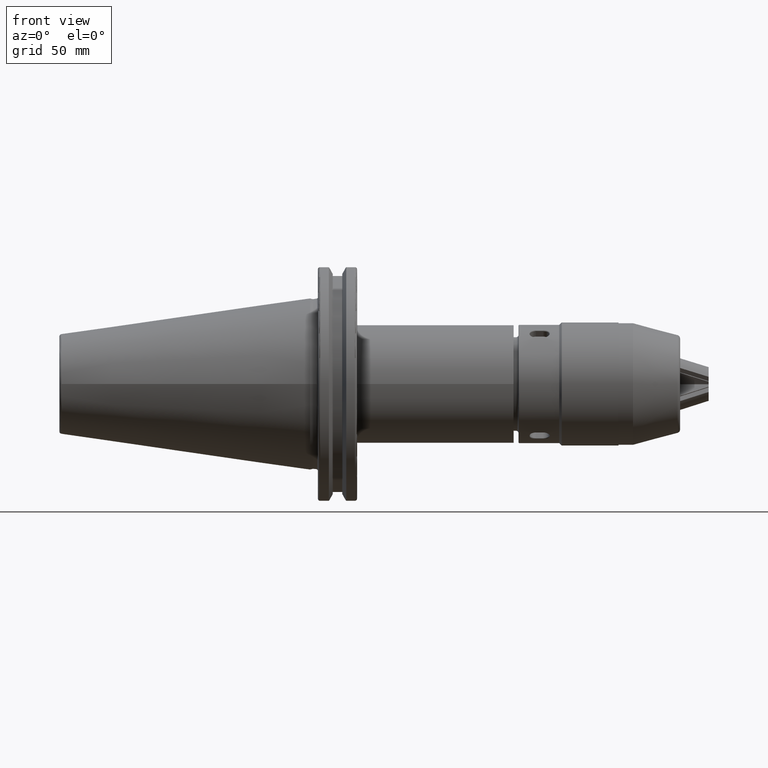
[diagram: clean part render]
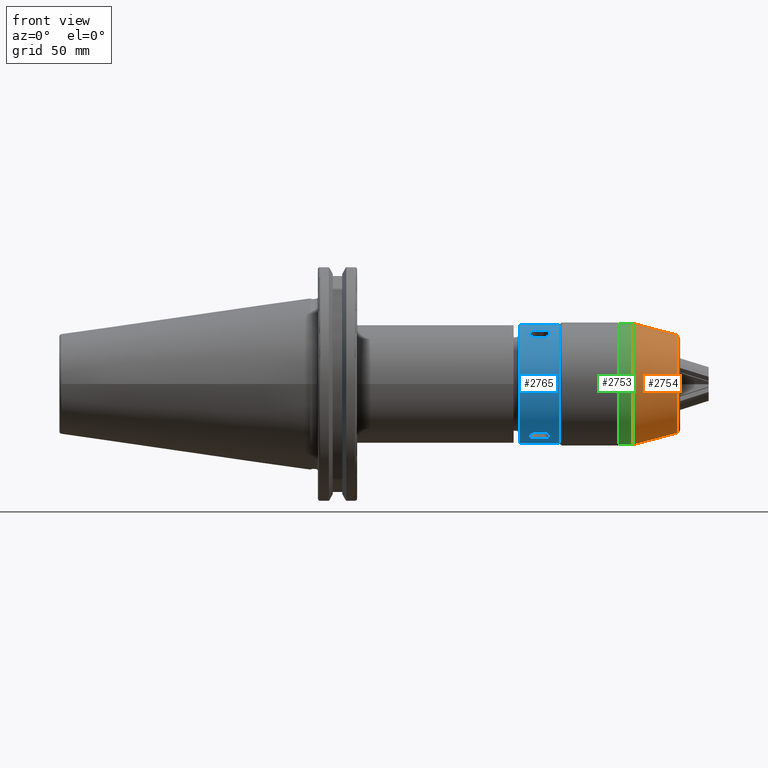
[diagram: same view with three faces highlighted in distinct colors, each labeled with its STEP entity id]
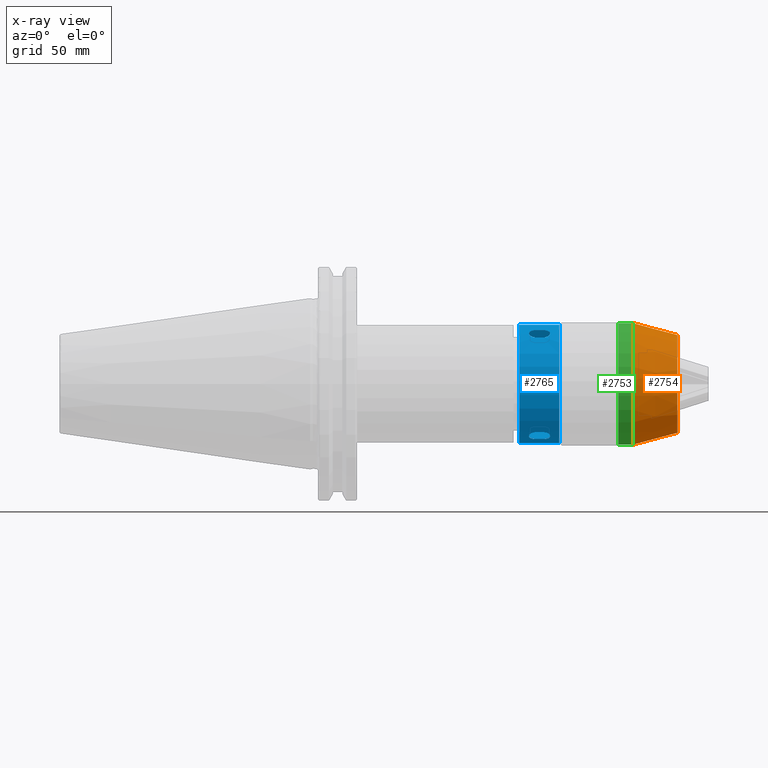
[diagram: x-ray of the same camera — body ghosted, the three highlighted faces saturated]
A machine part, front view with three faces highlighted in distinct colors.
The next image is the same camera in x-ray (body ghosted, the three faces saturated) — at least one of them is partly hidden behind the body in this view.
Their STEP definitions:

[orange] entity #2754 — the highlighted conical surface has half-angle 15 deg.
#426=CONICAL_SURFACE('',#3204,24.7,0.261799387799143);
#602=FACE_OUTER_BOUND('',#764,.T.);
#764=EDGE_LOOP('',(#2286,#2287,#2288,#2289));
#925=LINE('',#4890,#1122);
#1122=VECTOR('',#3792,24.7);
#1314=CIRCLE('',#3203,24.7);
#1315=CIRCLE('',#3205,19.8800686820308);
#1468=VERTEX_POINT('',#4885);
#1469=VERTEX_POINT('',#4889);
#1758=EDGE_CURVE('',#1468,#1468,#1314,.T.);
#1759=EDGE_CURVE('',#1468,#1469,#925,.T.);
#1760=EDGE_CURVE('',#1469,#1469,#1315,.T.);
#2286=ORIENTED_EDGE('',*,*,#1758,.F.);
#2287=ORIENTED_EDGE('',*,*,#1759,.T.);
#2288=ORIENTED_EDGE('',*,*,#1760,.T.);
#2289=ORIENTED_EDGE('',*,*,#1759,.F.);
#2754=ADVANCED_FACE('',(#602),#426,.T.);
#3203=AXIS2_PLACEMENT_3D('',#4887,#3788,#3789);
#3204=AXIS2_PLACEMENT_3D('',#4888,#3790,#3791);
#3205=AXIS2_PLACEMENT_3D('',#4891,#3793,#3794);
#3788=DIRECTION('center_axis',(9.33664374448044E-21,-1.,-2.19361169022002E-20));
#3789=DIRECTION('ref_axis',(4.32986979603811E-15,2.19361169022003E-20,-1.));
#3790=DIRECTION('center_axis',(9.33664374448044E-21,-1.,-2.19361169022002E-20));
#3791=DIRECTION('ref_axis',(4.32986979603811E-15,2.19361169022003E-20,-1.));
#3792=DIRECTION('',(1.1523399390378E-15,0.96592582628907,-0.258819045102515));
#3793=DIRECTION('center_axis',(9.33664374448044E-21,-1.,-2.19361169022002E-20));
#3794=DIRECTION('ref_axis',(4.32986979603811E-15,2.19361169022003E-20,-1.));
#4885=CARTESIAN_POINT('',(-1.09972940721683E-13,29.9,24.7));
#4887=CARTESIAN_POINT('Origin',(-2.79165648036739E-19,29.9,6.55889895421925E-19));
#4888=CARTESIAN_POINT('Origin',(-2.79165648036739E-19,29.9,6.55889895421925E-19));
#4889=CARTESIAN_POINT('',(-8.85131622926461E-14,47.8882285676538,19.8800686820308));
#4890=CARTESIAN_POINT('',(-1.09972940721683E-13,29.9,24.7));
#4891=CARTESIAN_POINT('Origin',(-4.47115329783956E-19,47.8882285676538,
1.05048178014135E-18));

[blue] entity #2765 — the highlighted cylindrical surface (bore or boss wall) has radius 24 mm, axis along (1, -0, -0).
#387=B_SPLINE_CURVE_WITH_KNOTS('',3,(#4963,#4964,#4965,#4966,#4967,#4968,
#4969,#4970,#4971,#4972,#4973,#4974,#4975,#4976,#4977,#4978,#4979,#4980),
 .UNSPECIFIED.,.F.,.F.,(4,2,2,2,2,2,2,2,4),(0.00440892581885731,0.00495953149996009,
0.00551013718106286,0.00606074286216564,0.00661134854326842,0.0071619542243712,
0.00771255990547397,0.00826316558657675,0.00881377126767952),
 .UNSPECIFIED.);
#388=B_SPLINE_CURVE_WITH_KNOTS('',3,(#4982,#4983,#4984,#4985,#4986,#4987,
#4988,#4989,#4990,#4991,#4992,#4993,#4994,#4995,#4996,#4997,#4998,#4999,
#5000,#5001,#5002,#5003,#5004,#5005,#5006,#5007,#5008,#5009,#5010,#5011,
#5012,#5013,#5014,#5015,#5016,#5017,#5018,#5019,#5020,#5021,#5022,#5023,
#5024,#5025,#5026,#5027,#5028,#5029,#5030,#5031,#5032,#5033,#5034,#5035,
#5036,#5037,#5038,#5039,#5040,#5041,#5042),.UNSPECIFIED.,.F.,.F.,(4,3,3,
3,3,3,3,3,3,3,3,3,3,3,3,3,3,3,3,3,4),(0.,0.000547517435391667,0.000551115727357164,
0.000946703184153695,0.00109552508824886,0.00110223145471433,0.00164452387624054,
0.00165334718207149,0.00207315003302939,0.00219472326330774,0.00220446290942865,
0.00258200978068174,0.00274626147636323,0.00275557863678582,0.0031373182863236,
0.00329900945385223,0.00330669436414298,0.00385271726613962,0.00385781009150015,
0.00440688062733961,0.00440892581885732),.UNSPECIFIED.);
#389=B_SPLINE_CURVE_WITH_KNOTS('',3,(#5043,#5044,#5045,#5046,#5047,#5048,
#5049,#5050,#5051,#5052,#5053,#5054,#5055,#5056,#5057,#5058,#5059,#5060),
 .UNSPECIFIED.,.F.,.F.,(4,2,2,2,2,2,2,2,4),(0.00440892581885732,0.00495953149996009,
0.00551013718106287,0.00606074286216565,0.00661134854326842,0.0071619542243712,
0.00771255990547398,0.00826316558657676,0.00881377126767953),
 .UNSPECIFIED.);
#390=B_SPLINE_CURVE_WITH_KNOTS('',3,(#5061,#5062,#5063,#5064,#5065,#5066,
#5067,#5068,#5069,#5070,#5071,#5072,#5073,#5074,#5075,#5076,#5077,#5078,
#5079,#5080,#5081,#5082,#5083,#5084,#5085,#5086,#5087,#5088,#5089,#5090,
#5091,#5092,#5093,#5094,#5095,#5096,#5097,#5098,#5099,#5100,#5101,#5102,
#5103,#5104,#5105,#5106,#5107,#5108,#5109,#5110,#5111,#5112,#5113,#5114,
#5115,#5116,#5117,#5118,#5119,#5120,#5121),.UNSPECIFIED.,.F.,.F.,(4,3,3,
3,3,3,3,3,3,3,3,3,3,3,3,3,3,3,3,3,4),(0.,0.000547517435391673,0.000551115727357164,
0.000946703184115908,0.00109552508824886,0.00110223145471433,0.00164452387624054,
0.00165334718207149,0.00207315003280708,0.00219472326330774,0.00220446290942866,
0.00258200978115564,0.00274626147636323,0.00275557863678582,0.00313731828656481,
0.00329900945385223,0.00330669436414298,0.00385271726613962,0.00385781009150015,
0.00440688062733961,0.00440892581885731),.UNSPECIFIED.);
#391=B_SPLINE_CURVE_WITH_KNOTS('',3,(#5124,#5125,#5126,#5127,#5128,#5129,
#5130,#5131,#5132,#5133,#5134,#5135,#5136,#5137,#5138,#5139,#5140,#5141,
#5142,#5143,#5144,#5145,#5146,#5147,#5148,#5149,#5150,#5151,#5152,#5153,
#5154,#5155,#5156,#5157),.UNSPECIFIED.,.F.,.F.,(4,2,2,2,2,2,2,2,2,2,2,2,
2,2,2,2,4),(0.,0.000550860704229969,0.00110172140845994,0.00165258211268991,
0.00220344281691987,0.00275430352114984,0.00330516422537981,0.00385602492960978,
0.00440688563383975,0.00495774633806972,0.00550860704229969,0.00605946774652966,
0.00661032845075963,0.0071611891549896,0.00771204985921958,0.00826291056344955,
0.00881377126767953),.UNSPECIFIED.);
#392=B_SPLINE_CURVE_WITH_KNOTS('',3,(#5161,#5162,#5163,#5164,#5165,#5166,
#5167,#5168,#5169,#5170,#5171,#5172,#5173,#5174,#5175,#5176,#5177,#5178,
#5179,#5180,#5181,#5182,#5183,#5184,#5185,#5186,#5187,#5188,#5189,#5190,
#5191,#5192,#5193,#5194),.UNSPECIFIED.,.F.,.F.,(4,2,2,2,2,2,2,2,2,2,2,2,
2,2,2,2,4),(0.,0.00055086070422997,0.00110172140845994,0.00165258211268991,
0.00220344281691988,0.00275430352114985,0.00330516422537982,0.00385602492960979,
0.00440688563383976,0.00495774633806973,0.0055086070422997,0.00605946774652967,
0.00661032845075964,0.00716118915498961,0.00771204985921958,0.00826291056344956,
0.00881377126767953),.UNSPECIFIED.);
#393=B_SPLINE_CURVE_WITH_KNOTS('',3,(#5200,#5201,#5202,#5203,#5204,#5205,
#5206,#5207,#5208,#5209,#5210,#5211,#5212,#5213,#5214,#5215,#5216,#5217,
#5218,#5219,#5220,#5221,#5222,#5223,#5224,#5225,#5226,#5227,#5228,#5229,
#5230,#5231,#5232,#5233),.UNSPECIFIED.,.F.,.F.,(4,2,2,2,2,2,2,2,2,2,2,2,
2,2,2,2,4),(0.,0.00055086070422997,0.00110172140845994,0.00165258211268991,
0.00220344281691988,0.00275430352114985,0.00330516422537982,0.00385602492960979,
0.00440688563383976,0.00495774633806973,0.0055086070422997,0.00605946774652968,
0.00661032845075965,0.00716118915498962,0.00771204985921959,0.00826291056344956,
0.00881377126767953),.UNSPECIFIED.);
#394=B_SPLINE_CURVE_WITH_KNOTS('',3,(#5236,#5237,#5238,#5239,#5240,#5241,
#5242,#5243,#5244,#5245,#5246,#5247,#5248,#5249,#5250,#5251,#5252,#5253,
#5254,#5255,#5256,#5257,#5258,#5259,#5260,#5261,#5262,#5263,#5264,#5265,
#5266,#5267,#5268,#5269),.UNSPECIFIED.,.F.,.F.,(4,2,2,2,2,2,2,2,2,2,2,2,
2,2,2,2,4),(0.,0.00055086070422997,0.00110172140845994,0.00165258211268991,
0.00220344281691988,0.00275430352114985,0.00330516422537982,0.00385602492960979,
0.00440688563383976,0.00495774633806973,0.0055086070422997,0.00605946774652967,
0.00661032845075964,0.00716118915498961,0.00771204985921958,0.00826291056344955,
0.00881377126767952),.UNSPECIFIED.);
#440=FACE_BOUND('',#777,.T.);
#441=FACE_BOUND('',#778,.T.);
#442=FACE_BOUND('',#779,.T.);
#613=FACE_OUTER_BOUND('',#776,.T.);
#776=EDGE_LOOP('',(#2326,#2327,#2328,#2329));
#777=EDGE_LOOP('',(#2330,#2331,#2332,#2333,#2334,#2335));
#778=EDGE_LOOP('',(#2336,#2337,#2338,#2339));
#779=EDGE_LOOP('',(#2340,#2341,#2342,#2343));
#926=LINE('',#4919,#1123);
#929=LINE('',#4937,#1126);
#932=LINE('',#4961,#1129);
#933=LINE('',#5159,#1130);
#934=LINE('',#5195,#1131);
#935=LINE('',#5198,#1132);
#936=LINE('',#5235,#1133);
#1123=VECTOR('',#3831,1000.);
#1126=VECTOR('',#3848,1000.);
#1129=VECTOR('',#3879,24.);
#1130=VECTOR('',#3880,1000.);
#1131=VECTOR('',#3881,1000.);
#1132=VECTOR('',#3882,1000.);
#1133=VECTOR('',#3883,1000.);
#1331=CIRCLE('',#3240,24.);
#1334=CIRCLE('',#3244,24.);
#1473=VERTEX_POINT('',#4916);
#1474=VERTEX_POINT('',#4918);
#1478=VERTEX_POINT('',#4927);
#1482=VERTEX_POINT('',#4935);
#1487=VERTEX_POINT('',#4953);
#1489=VERTEX_POINT('',#4959);
#1490=VERTEX_POINT('',#4962);
#1491=VERTEX_POINT('',#4981);
#1492=VERTEX_POINT('',#5122);
#1493=VERTEX_POINT('',#5123);
#1494=VERTEX_POINT('',#5158);
#1495=VERTEX_POINT('',#5160);
#1496=VERTEX_POINT('',#5196);
#1497=VERTEX_POINT('',#5197);
#1498=VERTEX_POINT('',#5199);
#1499=VERTEX_POINT('',#5234);
#1765=EDGE_CURVE('',#1474,#1473,#926,.T.);
#1774=EDGE_CURVE('',#1478,#1482,#929,.T.);
#1782=EDGE_CURVE('',#1487,#1487,#1331,.T.);
#1785=EDGE_CURVE('',#1489,#1489,#1334,.T.);
#1786=EDGE_CURVE('',#1489,#1487,#932,.T.);
#1787=EDGE_CURVE('',#1490,#1478,#387,.T.);
#1788=EDGE_CURVE('',#1482,#1491,#388,.T.);
#1789=EDGE_CURVE('',#1491,#1474,#389,.T.);
#1790=EDGE_CURVE('',#1473,#1490,#390,.T.);
#1791=EDGE_CURVE('',#1492,#1493,#391,.T.);
#1792=EDGE_CURVE('',#1493,#1494,#933,.T.);
#1793=EDGE_CURVE('',#1494,#1495,#392,.T.);
#1794=EDGE_CURVE('',#1495,#1492,#934,.T.);
#1795=EDGE_CURVE('',#1496,#1497,#935,.T.);
#1796=EDGE_CURVE('',#1497,#1498,#393,.T.);
#1797=EDGE_CURVE('',#1498,#1499,#936,.T.);
#1798=EDGE_CURVE('',#1499,#1496,#394,.T.);
#2326=ORIENTED_EDGE('',*,*,#1785,.F.);
#2327=ORIENTED_EDGE('',*,*,#1786,.T.);
#2328=ORIENTED_EDGE('',*,*,#1782,.T.);
#2329=ORIENTED_EDGE('',*,*,#1786,.F.);
#2330=ORIENTED_EDGE('',*,*,#1787,.T.);
#2331=ORIENTED_EDGE('',*,*,#1774,.T.);
#2332=ORIENTED_EDGE('',*,*,#1788,.T.);
#2333=ORIENTED_EDGE('',*,*,#1789,.T.);
#2334=ORIENTED_EDGE('',*,*,#1765,.T.);
#2335=ORIENTED_EDGE('',*,*,#1790,.T.);
#2336=ORIENTED_EDGE('',*,*,#1791,.T.);
#2337=ORIENTED_EDGE('',*,*,#1792,.T.);
#2338=ORIENTED_EDGE('',*,*,#1793,.T.);
#2339=ORIENTED_EDGE('',*,*,#1794,.T.);
#2340=ORIENTED_EDGE('',*,*,#1795,.T.);
#2341=ORIENTED_EDGE('',*,*,#1796,.T.);
#2342=ORIENTED_EDGE('',*,*,#1797,.T.);
#2343=ORIENTED_EDGE('',*,*,#1798,.T.);
#2665=CYLINDRICAL_SURFACE('',#3243,24.);
#2765=ADVANCED_FACE('',(#613,#440,#441,#442),#2665,.T.);
#3240=AXIS2_PLACEMENT_3D('',#4954,#3869,#3870);
#3243=AXIS2_PLACEMENT_3D('',#4958,#3875,#3876);
#3244=AXIS2_PLACEMENT_3D('',#4960,#3877,#3878);
#3831=DIRECTION('',(0.,-1.,0.));
#3848=DIRECTION('',(0.,1.,0.));
#3869=DIRECTION('center_axis',(0.,1.,0.));
#3870=DIRECTION('ref_axis',(0.,0.,1.));
#3875=DIRECTION('center_axis',(0.,1.,0.));
#3876=DIRECTION('ref_axis',(0.,0.,1.));
#3877=DIRECTION('center_axis',(0.,1.,0.));
#3878=DIRECTION('ref_axis',(0.,0.,1.));
#3879=DIRECTION('',(0.,-1.,0.));
#3880=DIRECTION('',(0.,-1.,0.));
#3881=DIRECTION('',(0.,1.,0.));
#3882=DIRECTION('',(0.,1.,0.));
#3883=DIRECTION('',(0.,-1.,0.));
#4916=CARTESIAN_POINT('',(2.83544303797468,-21.,23.8319168926547));
#4918=CARTESIAN_POINT('',(2.83544303797468,-18.,23.8319168926547));
#4919=CARTESIAN_POINT('',(2.83544303797467,0.,23.8319168926547));
#4927=CARTESIAN_POINT('',(-2.83544303797468,-21.,23.8319168926547));
#4935=CARTESIAN_POINT('',(-2.83544303797468,-18.,23.8319168926547));
#4937=CARTESIAN_POINT('',(-2.83544303797468,0.,23.8319168926547));
#4953=CARTESIAN_POINT('',(-2.93915231795365E-15,-27.7,-24.));
#4954=CARTESIAN_POINT('Origin',(0.,-27.7,0.));
#4958=CARTESIAN_POINT('Origin',(0.,0.,0.));
#4959=CARTESIAN_POINT('',(-2.93915231795365E-15,-11.5,-24.));
#4960=CARTESIAN_POINT('Origin',(0.,-11.5,0.));
#4961=CARTESIAN_POINT('',(-2.93915231795365E-15,0.,-24.));
#4962=CARTESIAN_POINT('',(7.05606588451342E-13,-23.799999991578,23.999999998587));
#4963=CARTESIAN_POINT('Ctrl Pts',(7.01516389887666E-13,-23.8,24.));
#4964=CARTESIAN_POINT('Ctrl Pts',(-0.183866423147814,-23.8,24.));
#4965=CARTESIAN_POINT('Ctrl Pts',(-0.370567700895003,-23.7819444709288,
23.9978203234072));
#4966=CARTESIAN_POINT('Ctrl Pts',(-0.732138923881349,-23.7111645898068,
23.989511735165));
#4967=CARTESIAN_POINT('Ctrl Pts',(-0.908042239445636,-23.6588119425311,
23.9834266527617));
#4968=CARTESIAN_POINT('Ctrl Pts',(-1.25001008675534,-23.5198473644258,23.9680364131071));
#4969=CARTESIAN_POINT('Ctrl Pts',(-1.41540307877182,-23.4329940637592,23.9587198298162));
#4970=CARTESIAN_POINT('Ctrl Pts',(-1.72213313630015,-23.2318137233607,23.9386273461926));
#4971=CARTESIAN_POINT('Ctrl Pts',(-1.86538163369627,-23.1168127133124,23.9277679135411));
#4972=CARTESIAN_POINT('Ctrl Pts',(-2.13073502481787,-22.8565712615983,23.905599641457));
#4973=CARTESIAN_POINT('Ctrl Pts',(-2.2485377543457,-22.7155269911367,23.8946615713535));
#4974=CARTESIAN_POINT('Ctrl Pts',(-2.45513094641273,-22.4125964529844,23.8743189573693));
#4975=CARTESIAN_POINT('Ctrl Pts',(-2.54471445470924,-22.2486989218002,23.8648204775907));
#4976=CARTESIAN_POINT('Ctrl Pts',(-2.68846341365019,-21.9086661555868,23.8490543325538));
#4977=CARTESIAN_POINT('Ctrl Pts',(-2.74277053012392,-21.733460675799,23.8427889102428));
#4978=CARTESIAN_POINT('Ctrl Pts',(-2.81638520794912,-21.3726876007205,23.8342054107067));
#4979=CARTESIAN_POINT('Ctrl Pts',(-2.83544303797468,-21.1862564637837,23.8319168926547));
#4980=CARTESIAN_POINT('Ctrl Pts',(-2.83544303797468,-21.,23.8319168926547));
#4981=CARTESIAN_POINT('',(-7.05148970858741E-13,-15.200000008422,23.999999998587));
#4982=CARTESIAN_POINT('Ctrl Pts',(-2.83544303797468,-18.,23.8319168926547));
#4983=CARTESIAN_POINT('Ctrl Pts',(-2.83544303386902,-17.8147869842147,23.8319168931432));
#4984=CARTESIAN_POINT('Ctrl Pts',(-2.81700829443057,-17.6327577279024,23.8341305723499));
#4985=CARTESIAN_POINT('Ctrl Pts',(-2.78097769906552,-17.4538417625587,23.8383338980924));
#4986=CARTESIAN_POINT('Ctrl Pts',(-2.78074090550712,-17.4526659244228,23.8383615224058));
#4987=CARTESIAN_POINT('Ctrl Pts',(-2.78050331379216,-17.4514901396681,23.8383892369384));
#4988=CARTESIAN_POINT('Ctrl Pts',(-2.78026492449431,-17.450314410365,23.8384170415226));
#4989=CARTESIAN_POINT('Ctrl Pts',(-2.75405698557054,-17.3210575936918,23.8414738098084));
#4990=CARTESIAN_POINT('Ctrl Pts',(-2.71818748151992,-17.1924061478664,23.845621440319));
#4991=CARTESIAN_POINT('Ctrl Pts',(-2.67342395015235,-17.0671798365421,23.8506370322333));
#4992=CARTESIAN_POINT('Ctrl Pts',(-2.65658369433106,-17.0200690958604,23.8525239220374));
#4993=CARTESIAN_POINT('Ctrl Pts',(-2.63848513916586,-16.9734429159499,23.854533609194));
#4994=CARTESIAN_POINT('Ctrl Pts',(-2.61917075444562,-16.927450312297,23.8566540939573));
#4995=CARTESIAN_POINT('Ctrl Pts',(-2.6183003896779,-16.9253777460529,23.8567496494334));
#4996=CARTESIAN_POINT('Ctrl Pts',(-2.61742765795449,-16.9233065167706,23.8568454188438));
#4997=CARTESIAN_POINT('Ctrl Pts',(-2.6165525598994,-16.9212366245398,23.8569414011673));
#4998=CARTESIAN_POINT('Ctrl Pts',(-2.54579009175679,-16.7538603148966,23.8647027555298));
#4999=CARTESIAN_POINT('Ctrl Pts',(-2.45952880693523,-16.5951857155035,23.8738584106844));
#5000=CARTESIAN_POINT('Ctrl Pts',(-2.35805465662742,-16.4451093816987,23.8838769514742));
#5001=CARTESIAN_POINT('Ctrl Pts',(-2.35640363325597,-16.4426675821482,23.884039956978));
#5002=CARTESIAN_POINT('Ctrl Pts',(-2.35474832575485,-16.4402279434639,23.8842032087297));
#5003=CARTESIAN_POINT('Ctrl Pts',(-2.35308875869436,-16.4377904933369,23.8843667019509));
#5004=CARTESIAN_POINT('Ctrl Pts',(-2.27412844646043,-16.3218193899865,23.8921455233685));
#5005=CARTESIAN_POINT('Ctrl Pts',(-2.18548056734201,-16.2107615826124,23.900475078787));
#5006=CARTESIAN_POINT('Ctrl Pts',(-2.08977739681336,-16.1076154886989,23.9088426238792));
#5007=CARTESIAN_POINT('Ctrl Pts',(-2.06206214056272,-16.0777447915395,23.9112658315445));
#5008=CARTESIAN_POINT('Ctrl Pts',(-2.03375519507913,-16.0485372980449,23.913692251355));
#5009=CARTESIAN_POINT('Ctrl Pts',(-2.00492043735027,-16.0200649665045,23.9161095088488));
#5010=CARTESIAN_POINT('Ctrl Pts',(-2.00261038656344,-16.0177839509158,23.916303163591));
#5011=CARTESIAN_POINT('Ctrl Pts',(-2.00029665580118,-16.0155071100017,23.9164967932039));
#5012=CARTESIAN_POINT('Ctrl Pts',(-1.99797924423389,-16.0132344454203,23.9166903942008));
#5013=CARTESIAN_POINT('Ctrl Pts',(-1.90814728568287,-15.9251370554853,23.924195127919));
#5014=CARTESIAN_POINT('Ctrl Pts',(-1.81281013217366,-15.8433287430144,23.9316548399621));
#5015=CARTESIAN_POINT('Ctrl Pts',(-1.71180767483478,-15.7678206627238,23.9388759933496));
#5016=CARTESIAN_POINT('Ctrl Pts',(-1.66786657467192,-15.7349708865245,23.9420175547794));
#5017=CARTESIAN_POINT('Ctrl Pts',(-1.62285277948165,-15.7033140441285,23.9451139783465));
#5018=CARTESIAN_POINT('Ctrl Pts',(-1.57675107727872,-15.6728533876945,23.948149323905));
#5019=CARTESIAN_POINT('Ctrl Pts',(-1.57413596299697,-15.6711255101137,23.9483215035674));
#5020=CARTESIAN_POINT('Ctrl Pts',(-1.57151804458181,-15.6694020399594,23.9484934309083));
#5021=CARTESIAN_POINT('Ctrl Pts',(-1.56889734051203,-15.6676829840073,23.9486651026328));
#5022=CARTESIAN_POINT('Ctrl Pts',(-1.46152271049975,-15.5972503857761,23.9556987803805));
#5023=CARTESIAN_POINT('Ctrl Pts',(-1.34961846755318,-15.5343208980356,23.9622939549729));
#5024=CARTESIAN_POINT('Ctrl Pts',(-1.23448601668462,-15.4793222743515,23.9682267412182));
#5025=CARTESIAN_POINT('Ctrl Pts',(-1.18572005689,-15.4560268380857,23.9707396558077));
#5026=CARTESIAN_POINT('Ctrl Pts',(-1.13637442864883,-15.434154679546,23.9731337358028));
#5027=CARTESIAN_POINT('Ctrl Pts',(-1.08654614664666,-15.4137403418957,23.9753919148576));
#5028=CARTESIAN_POINT('Ctrl Pts',(-1.08417789188678,-15.4127700826299,23.9754992423247));
#5029=CARTESIAN_POINT('Ctrl Pts',(-1.08180805991911,-15.4118029181438,23.9756062844196));
#5030=CARTESIAN_POINT('Ctrl Pts',(-1.07943666106762,-15.4108388528851,23.9757130397105));
#5031=CARTESIAN_POINT('Ctrl Pts',(-0.910945678910019,-15.3423407585211,
23.9832981424007));
#5032=CARTESIAN_POINT('Ctrl Pts',(-0.734549426677008,-15.2894979438591,
23.9894348068281));
#5033=CARTESIAN_POINT('Ctrl Pts',(-0.554194616618907,-15.254004734812,23.9936005702921));
#5034=CARTESIAN_POINT('Ctrl Pts',(-0.552512424265438,-15.253673685117,23.9936394249001));
#5035=CARTESIAN_POINT('Ctrl Pts',(-0.550830155028188,-15.253344172514,23.9936781042938));
#5036=CARTESIAN_POINT('Ctrl Pts',(-0.549147808944167,-15.2530161965982,
23.9937166084259));
#5037=CARTESIAN_POINT('Ctrl Pts',(-0.367769772112267,-15.2176562737546,
23.9978678374422));
#5038=CARTESIAN_POINT('Ctrl Pts',(-0.185381556290337,-15.2001345411298,
23.9999842623105));
#5039=CARTESIAN_POINT('Ctrl Pts',(-0.00204876506993331,-15.2000007641736,
23.9999999125534));
#5040=CARTESIAN_POINT('Ctrl Pts',(-0.00136588255293883,-15.2000002658779,
23.9999999708478));
#5041=CARTESIAN_POINT('Ctrl Pts',(-0.000682960710411145,-15.2000000167815,
23.999999999051));
#5042=CARTESIAN_POINT('Ctrl Pts',(-7.08884340117066E-13,-15.200000016844,
23.9999999971741));
#5043=CARTESIAN_POINT('Ctrl Pts',(-7.01415390534001E-13,-15.2,24.));
#5044=CARTESIAN_POINT('Ctrl Pts',(0.183866423147814,-15.1999999999999,24.));
#5045=CARTESIAN_POINT('Ctrl Pts',(0.370567700895012,-15.2180555290712,23.9978203234072));
#5046=CARTESIAN_POINT('Ctrl Pts',(0.732138923881357,-15.2888354101932,23.989511735165));
#5047=CARTESIAN_POINT('Ctrl Pts',(0.908042239445644,-15.3411880574688,23.9834266527617));
#5048=CARTESIAN_POINT('Ctrl Pts',(1.25001008675535,-15.4801526355742,23.9680364131071));
#5049=CARTESIAN_POINT('Ctrl Pts',(1.41540307877184,-15.5670059362408,23.9587198298161));
#5050=CARTESIAN_POINT('Ctrl Pts',(1.72213313630017,-15.7681862766393,23.9386273461926));
#5051=CARTESIAN_POINT('Ctrl Pts',(1.86538163369629,-15.8831872866876,23.9277679135411));
#5052=CARTESIAN_POINT('Ctrl Pts',(2.13073502481788,-16.1434287384017,23.905599641457));
#5053=CARTESIAN_POINT('Ctrl Pts',(2.24853775434571,-16.2844730088633,23.8946615713535));
#5054=CARTESIAN_POINT('Ctrl Pts',(2.45513094641274,-16.5874035470155,23.8743189573693));
#5055=CARTESIAN_POINT('Ctrl Pts',(2.54471445470926,-16.7513010781998,23.8648204775907));
#5056=CARTESIAN_POINT('Ctrl Pts',(2.68846341365019,-17.0913338444132,23.8490543325538));
#5057=CARTESIAN_POINT('Ctrl Pts',(2.74277053012393,-17.266539324201,23.8427889102428));
#5058=CARTESIAN_POINT('Ctrl Pts',(2.81638520794912,-17.6273123992795,23.8342054107067));
#5059=CARTESIAN_POINT('Ctrl Pts',(2.83544303797468,-17.8137435362163,23.8319168926547));
#5060=CARTESIAN_POINT('Ctrl Pts',(2.83544303797468,-18.,23.8319168926547));
#5061=CARTESIAN_POINT('Ctrl Pts',(2.83544303797468,-21.,23.8319168926547));
#5062=CARTESIAN_POINT('Ctrl Pts',(2.83544303386898,-21.1852130157853,23.8319168931432));
#5063=CARTESIAN_POINT('Ctrl Pts',(2.81700829443057,-21.3672422720975,23.8341305723499));
#5064=CARTESIAN_POINT('Ctrl Pts',(2.78097769906551,-21.5461582374413,23.8383338980924));
#5065=CARTESIAN_POINT('Ctrl Pts',(2.7807409055071,-21.5473340755772,23.8383615224058));
#5066=CARTESIAN_POINT('Ctrl Pts',(2.78050331379214,-21.5485098603319,23.8383892369384));
#5067=CARTESIAN_POINT('Ctrl Pts',(2.78026492449429,-21.549685589635,23.8384170415226));
#5068=CARTESIAN_POINT('Ctrl Pts',(2.75405698557301,-21.6789424062958,23.8414738098081));
#5069=CARTESIAN_POINT('Ctrl Pts',(2.71818748152677,-21.807593852109,23.8456214403182));
#5070=CARTESIAN_POINT('Ctrl Pts',(2.67342395016519,-21.932820163422,23.8506370322319));
#5071=CARTESIAN_POINT('Ctrl Pts',(2.65658369434027,-21.979930904116,23.8525239220364));
#5072=CARTESIAN_POINT('Ctrl Pts',(2.63848513917078,-22.0265570840384,23.8545336091934));
#5073=CARTESIAN_POINT('Ctrl Pts',(2.61917075444562,-22.0725496877031,23.8566540939573));
#5074=CARTESIAN_POINT('Ctrl Pts',(2.61830038967791,-22.0746222539471,23.8567496494334));
#5075=CARTESIAN_POINT('Ctrl Pts',(2.6174276579545,-22.0766934832294,23.8568454188438));
#5076=CARTESIAN_POINT('Ctrl Pts',(2.61655255989941,-22.0787633754602,23.8569414011673));
#5077=CARTESIAN_POINT('Ctrl Pts',(2.54579009175678,-22.2461396851034,23.8647027555298));
#5078=CARTESIAN_POINT('Ctrl Pts',(2.45952880693522,-22.4048142844965,23.8738584106844));
#5079=CARTESIAN_POINT('Ctrl Pts',(2.35805465662741,-22.5548906183013,23.8838769514742));
#5080=CARTESIAN_POINT('Ctrl Pts',(2.35640363325596,-22.5573324178518,23.884039956978));
#5081=CARTESIAN_POINT('Ctrl Pts',(2.35474832575483,-22.5597720565361,23.8842032087297));
#5082=CARTESIAN_POINT('Ctrl Pts',(2.35308875869434,-22.5622095066631,23.8843667019509));
#5083=CARTESIAN_POINT('Ctrl Pts',(2.27412844650223,-22.6781806099521,23.8921455233644));
#5084=CARTESIAN_POINT('Ctrl Pts',(2.18548056743584,-22.7892384172699,23.9004750787782));
#5085=CARTESIAN_POINT('Ctrl Pts',(2.08977739696533,-22.8923845111371,23.9088426238659));
#5086=CARTESIAN_POINT('Ctrl Pts',(2.06206214066616,-22.9222552083536,23.9112658315356));
#5087=CARTESIAN_POINT('Ctrl Pts',(2.03375519513178,-22.951462701903,23.9136922513506));
#5088=CARTESIAN_POINT('Ctrl Pts',(2.00492043735019,-22.9799350334954,23.9161095088488));
#5089=CARTESIAN_POINT('Ctrl Pts',(2.00261038656337,-22.9822160490841,23.916303163591));
#5090=CARTESIAN_POINT('Ctrl Pts',(2.00029665580111,-22.9844928899982,23.9164967932039));
#5091=CARTESIAN_POINT('Ctrl Pts',(1.99797924423383,-22.9867655545797,23.9166903942008));
#5092=CARTESIAN_POINT('Ctrl Pts',(1.90814728557008,-23.0748629446252,23.9241951279284));
#5093=CARTESIAN_POINT('Ctrl Pts',(1.81281013193436,-23.156671257191,23.9316548399808));
#5094=CARTESIAN_POINT('Ctrl Pts',(1.71180767445447,-23.2321793375606,23.9388759933768));
#5095=CARTESIAN_POINT('Ctrl Pts',(1.6678665744122,-23.2650291136581,23.9420175547973));
#5096=CARTESIAN_POINT('Ctrl Pts',(1.62285277934867,-23.2966859559594,23.9451139783553));
#5097=CARTESIAN_POINT('Ctrl Pts',(1.57675107727876,-23.3271466123056,23.948149323905));
#5098=CARTESIAN_POINT('Ctrl Pts',(1.57413596299701,-23.3288744898864,23.9483215035674));
#5099=CARTESIAN_POINT('Ctrl Pts',(1.57151804458185,-23.3305979600407,23.9484934309083));
#5100=CARTESIAN_POINT('Ctrl Pts',(1.56889734051207,-23.3323170159928,23.9486651026328));
#5101=CARTESIAN_POINT('Ctrl Pts',(1.46152271043198,-23.4027496142685,23.955698780385));
#5102=CARTESIAN_POINT('Ctrl Pts',(1.3496184674118,-23.465679102044,23.9622939549812));
#5103=CARTESIAN_POINT('Ctrl Pts',(1.23448601646637,-23.5206777257528,23.9682267412295));
#5104=CARTESIAN_POINT('Ctrl Pts',(1.18572005674276,-23.5439731619796,23.9707396558148));
#5105=CARTESIAN_POINT('Ctrl Pts',(1.13637442857448,-23.5658453204844,23.9731337358062));
#5106=CARTESIAN_POINT('Ctrl Pts',(1.08654614664664,-23.5862596581043,23.9753919148576));
#5107=CARTESIAN_POINT('Ctrl Pts',(1.08417789188677,-23.5872299173701,23.9754992423247));
#5108=CARTESIAN_POINT('Ctrl Pts',(1.0818080599191,-23.5881970818562,23.9756062844196));
#5109=CARTESIAN_POINT('Ctrl Pts',(1.07943666106761,-23.5891611471149,23.9757130397105));
#5110=CARTESIAN_POINT('Ctrl Pts',(0.910945678910009,-23.6576592414788,23.9832981424007));
#5111=CARTESIAN_POINT('Ctrl Pts',(0.734549426677008,-23.7105020561409,23.9894348068281));
#5112=CARTESIAN_POINT('Ctrl Pts',(0.554194616618906,-23.745995265188,23.9936005702921));
#5113=CARTESIAN_POINT('Ctrl Pts',(0.552512424265437,-23.746326314883,23.9936394249001));
#5114=CARTESIAN_POINT('Ctrl Pts',(0.550830155028188,-23.746655827486,23.9936781042938));
#5115=CARTESIAN_POINT('Ctrl Pts',(0.549147808944167,-23.7469838034018,23.9937166084259));
#5116=CARTESIAN_POINT('Ctrl Pts',(0.367769772112266,-23.7823437262454,23.9978678374422));
#5117=CARTESIAN_POINT('Ctrl Pts',(0.185381556290335,-23.7998654588701,23.9999842623105));
#5118=CARTESIAN_POINT('Ctrl Pts',(0.00204876506993321,-23.7999992358264,
23.9999999125534));
#5119=CARTESIAN_POINT('Ctrl Pts',(0.00136588255293928,-23.7999997341221,
23.9999999708478));
#5120=CARTESIAN_POINT('Ctrl Pts',(0.000682960710411387,-23.7999999832185,
23.999999999051));
#5121=CARTESIAN_POINT('Ctrl Pts',(7.09703996959466E-13,-23.799999983156,
23.9999999971741));
#5122=CARTESIAN_POINT('',(-19.2213239309311,-18.,-14.3715241481972));
#5123=CARTESIAN_POINT('',(-22.0567669689058,-18.,-9.46039274445765));
#5124=CARTESIAN_POINT('Ctrl Pts',(-19.2213239309311,-18.,-14.3715241481972));
#5125=CARTESIAN_POINT('Ctrl Pts',(-19.2213239309311,-17.8136560304513,-14.3715241481972));
#5126=CARTESIAN_POINT('Ctrl Pts',(-19.2325881566529,-17.6305592412717,-14.3564933534857));
#5127=CARTESIAN_POINT('Ctrl Pts',(-19.2764329963469,-17.2705687087131,-14.2975690083823));
#5128=CARTESIAN_POINT('Ctrl Pts',(-19.3095695180609,-17.0917451495731,-14.2529207512521));
#5129=CARTESIAN_POINT('Ctrl Pts',(-19.3950727582876,-16.7516711073448,-14.1363495151694));
#5130=CARTESIAN_POINT('Ctrl Pts',(-19.4470498085794,-16.5906257570916,-14.0649593989067));
#5131=CARTESIAN_POINT('Ctrl Pts',(-19.5682866905241,-16.2862163414227,-13.8957901951533));
#5132=CARTESIAN_POINT('Ctrl Pts',(-19.6380572327326,-16.1425332414746,-13.7972459664863));
#5133=CARTESIAN_POINT('Ctrl Pts',(-19.7880507256921,-15.8853600260847,-13.5812494496362));
#5134=CARTESIAN_POINT('Ctrl Pts',(-19.868867203115,-15.7700886682621,-13.4629940652604));
#5135=CARTESIAN_POINT('Ctrl Pts',(-20.041341247438,-15.5666864050443,-13.2048753928235));
#5136=CARTESIAN_POINT('Ctrl Pts',(-20.1314866883779,-15.4806109164923,-13.0672179122294));
#5137=CARTESIAN_POINT('Ctrl Pts',(-20.3147023170186,-15.342216459445,-12.7805246379382));
#5138=CARTESIAN_POINT('Ctrl Pts',(-20.4090744807684,-15.2889513171987,-12.6294420665645));
#5139=CARTESIAN_POINT('Ctrl Pts',(-20.5982743011637,-15.217768945454,-12.3184505473813));
#5140=CARTESIAN_POINT('Ctrl Pts',(-20.6916020027325,-15.2001316595995,-12.1610625380498));
#5141=CARTESIAN_POINT('Ctrl Pts',(-20.875573402228,-15.199869795203,-11.8424773853291));
#5142=CARTESIAN_POINT('Ctrl Pts',(-20.9670944992277,-15.2178065637199,-11.6796271652275));
#5143=CARTESIAN_POINT('Ctrl Pts',(-21.140818743924,-15.2883970126859,-11.3621531979998));
#5144=CARTESIAN_POINT('Ctrl Pts',(-21.22356252294,-15.3406731564613,-11.2066821586373));
#5145=CARTESIAN_POINT('Ctrl Pts',(-21.3813342447892,-15.4795097859844,-10.90265458879));
#5146=CARTESIAN_POINT('Ctrl Pts',(-21.4560307369836,-15.5663281795442,-10.7546456527446));
#5147=CARTESIAN_POINT('Ctrl Pts',(-21.5921119955651,-15.767466796234,-10.4787574489278));
#5148=CARTESIAN_POINT('Ctrl Pts',(-21.6543834945361,-15.882460571326,-10.3491752497525));
#5149=CARTESIAN_POINT('Ctrl Pts',(-21.7679554567438,-16.1427093410021,-10.1081090274959));
#5150=CARTESIAN_POINT('Ctrl Pts',(-21.8174358944398,-16.2838009417598,-10.0005141392266));
#5151=CARTESIAN_POINT('Ctrl Pts',(-21.9031918740049,-16.586812966113,-9.81126789907322));
#5152=CARTESIAN_POINT('Ctrl Pts',(-21.939789772259,-16.7507595797523,-9.72886748054431));
#5153=CARTESIAN_POINT('Ctrl Pts',(-21.9980650264085,-17.0909304153359,-9.59637289807034));
#5154=CARTESIAN_POINT('Ctrl Pts',(-22.019812339771,-17.2662099781707,-9.5461636386047));
#5155=CARTESIAN_POINT('Ctrl Pts',(-22.0492129630639,-17.6271404560286,-9.47805799745946));
#5156=CARTESIAN_POINT('Ctrl Pts',(-22.0567669689058,-17.8136572681165,-9.46039274445765));
#5157=CARTESIAN_POINT('Ctrl Pts',(-22.0567669689058,-18.,-9.46039274445765));
#5158=CARTESIAN_POINT('',(-22.0567669689058,-21.,-9.46039274445765));
#5159=CARTESIAN_POINT('',(-22.0567669689058,0.,-9.46039274445766));
#5160=CARTESIAN_POINT('',(-19.2213239309311,-21.,-14.3715241481972));
#5161=CARTESIAN_POINT('Ctrl Pts',(-22.0567669689058,-21.,-9.46039274445765));
#5162=CARTESIAN_POINT('Ctrl Pts',(-22.0567669689058,-21.1863439695487,-9.46039274445766));
#5163=CARTESIAN_POINT('Ctrl Pts',(-22.0493820317074,-21.3694407587283,-9.47766324744252));
#5164=CARTESIAN_POINT('Ctrl Pts',(-22.0202744717935,-21.7294312912869,-9.54509616499405));
#5165=CARTESIAN_POINT('Ctrl Pts',(-21.998176207741,-21.908254850427,-9.59611736315659));
#5166=CARTESIAN_POINT('Ctrl Pts',(-21.9399741760562,-22.2483288926552,-9.72845095934008));
#5167=CARTESIAN_POINT('Ctrl Pts',(-21.9041370469395,-22.4093742429084,-9.80915946343794));
#5168=CARTESIAN_POINT('Ctrl Pts',(-21.8182506599234,-22.7137836585774,-9.99873828495438));
#5169=CARTESIAN_POINT('Ctrl Pts',(-21.7677941256057,-22.8574667585254,-10.1084334612763));
#5170=CARTESIAN_POINT('Ctrl Pts',(-21.6557324013643,-23.1146399739153,-10.3463298950065));
#5171=CARTESIAN_POINT('Ctrl Pts',(-21.593728473072,-23.2299113317379,-10.4754467096871));
#5172=CARTESIAN_POINT('Ctrl Pts',(-21.4564281677121,-23.4333135949557,-10.7538729497827));
#5173=CARTESIAN_POINT('Ctrl Pts',(-21.3822860129666,-23.5193890835077,-10.900769931969));
#5174=CARTESIAN_POINT('Ctrl Pts',(-21.2256101686566,-23.657783540555,-11.2027859578878));
#5175=CARTESIAN_POINT('Ctrl Pts',(-21.1419549056528,-23.7110486828013,-11.3600559347921));
#5176=CARTESIAN_POINT('Ctrl Pts',(-20.9672282598763,-23.782231054546,-11.6794035452375));
#5177=CARTESIAN_POINT('Ctrl Pts',(-20.8775900963285,-23.7998683404005,-11.8389217103386));
#5178=CARTESIAN_POINT('Ctrl Pts',(-20.6936729605516,-23.8001302047969,-12.1575381922319));
#5179=CARTESIAN_POINT('Ctrl Pts',(-20.5984010814316,-23.7821934362801,-12.3182228972666));
#5180=CARTESIAN_POINT('Ctrl Pts',(-20.4103226831203,-23.7116029873141,-12.6274094900407));
#5181=CARTESIAN_POINT('Ctrl Pts',(-20.3170527029876,-23.6593268435387,-12.7768032243549));
#5182=CARTESIAN_POINT('Ctrl Pts',(-20.1326429649736,-23.5204902140155,-13.0654513283988));
#5183=CARTESIAN_POINT('Ctrl Pts',(-20.0418117124684,-23.4336718204558,-13.2041448562355));
#5184=CARTESIAN_POINT('Ctrl Pts',(-19.8709261486493,-23.232533203766,-13.4599387850543));
#5185=CARTESIAN_POINT('Ctrl Pts',(-19.7898404217708,-23.117539428674,-13.5786585846827));
#5186=CARTESIAN_POINT('Ctrl Pts',(-19.6378569304061,-22.8572906589979,-13.7975479002405));
#5187=CARTESIAN_POINT('Ctrl Pts',(-19.5694172426955,-22.7161990582402,-13.8941966604102));
#5188=CARTESIAN_POINT('Ctrl Pts',(-19.4484031809345,-22.413187033887,-14.0630866373167));
#5189=CARTESIAN_POINT('Ctrl Pts',(-19.3953412743331,-22.2492404202477,-14.1359815561943));
#5190=CARTESIAN_POINT('Ctrl Pts',(-19.3097352271215,-21.9090695846641,-14.2526966979368));
#5191=CARTESIAN_POINT('Ctrl Pts',(-19.2771263896004,-21.7337900218293,-14.2966350535056));
#5192=CARTESIAN_POINT('Ctrl Pts',(-19.232845485874,-21.3728595439714,-14.356149560737));
#5193=CARTESIAN_POINT('Ctrl Pts',(-19.2213239309311,-21.1863427318835,-14.3715241481972));
#5194=CARTESIAN_POINT('Ctrl Pts',(-19.2213239309311,-21.,-14.3715241481972));
#5195=CARTESIAN_POINT('',(-19.2213239309311,0.,-14.3715241481972));
#5196=CARTESIAN_POINT('',(22.0567669689059,-21.,-9.46039274445735));
#5197=CARTESIAN_POINT('',(22.0567669689059,-18.,-9.46039274445735));
#5198=CARTESIAN_POINT('',(22.0567669689059,0.,-9.46039274445735));
#5199=CARTESIAN_POINT('',(19.2213239309313,-18.,-14.371524148197));
#5200=CARTESIAN_POINT('Ctrl Pts',(22.0567669689059,-18.,-9.46039274445735));
#5201=CARTESIAN_POINT('Ctrl Pts',(22.0567669689059,-17.8136560304512,-9.46039274445735));
#5202=CARTESIAN_POINT('Ctrl Pts',(22.0493820317075,-17.6305592412717,-9.47766324744221));
#5203=CARTESIAN_POINT('Ctrl Pts',(22.0202744717936,-17.2705687087131,-9.54509616499374));
#5204=CARTESIAN_POINT('Ctrl Pts',(21.9981762077412,-17.091745149573,-9.59611736315628));
#5205=CARTESIAN_POINT('Ctrl Pts',(21.9399741760564,-16.7516711073448,-9.72845095933977));
#5206=CARTESIAN_POINT('Ctrl Pts',(21.9041370469396,-16.5906257570916,-9.80915946343763));
#5207=CARTESIAN_POINT('Ctrl Pts',(21.8182506599235,-16.2862163414227,-9.99873828495407));
#5208=CARTESIAN_POINT('Ctrl Pts',(21.7677941256059,-16.1425332414746,-10.1084334612759));
#5209=CARTESIAN_POINT('Ctrl Pts',(21.6557324013644,-15.8853600260847,-10.3463298950062));
#5210=CARTESIAN_POINT('Ctrl Pts',(21.5937284730722,-15.7700886682621,-10.4754467096868));
#5211=CARTESIAN_POINT('Ctrl Pts',(21.4564281677122,-15.5666864050443,-10.7538729497824));
#5212=CARTESIAN_POINT('Ctrl Pts',(21.3822860129667,-15.4806109164923,-10.9007699319687));
#5213=CARTESIAN_POINT('Ctrl Pts',(21.2256101686568,-15.342216459445,-11.2027859578875));
#5214=CARTESIAN_POINT('Ctrl Pts',(21.1419549056529,-15.2889513171987,-11.3600559347918));
#5215=CARTESIAN_POINT('Ctrl Pts',(20.9672282598764,-15.217768945454,-11.6794035452372));
#5216=CARTESIAN_POINT('Ctrl Pts',(20.8775900963287,-15.2001316595995,-11.8389217103383));
#5217=CARTESIAN_POINT('Ctrl Pts',(20.6936729605518,-15.199869795203,-12.1575381922316));
#5218=CARTESIAN_POINT('Ctrl Pts',(20.5984010814317,-15.2178065637199,-12.3182228972664));
#5219=CARTESIAN_POINT('Ctrl Pts',(20.4103226831205,-15.2883970126859,-12.6274094900404));
#5220=CARTESIAN_POINT('Ctrl Pts',(20.3170527029878,-15.3406731564613,-12.7768032243546));
#5221=CARTESIAN_POINT('Ctrl Pts',(20.1326429649738,-15.4795097859844,-13.0654513283985));
#5222=CARTESIAN_POINT('Ctrl Pts',(20.0418117124686,-15.5663281795442,-13.2041448562352));
#5223=CARTESIAN_POINT('Ctrl Pts',(19.8709261486495,-15.767466796234,-13.4599387850541));
#5224=CARTESIAN_POINT('Ctrl Pts',(19.7898404217709,-15.882460571326,-13.5786585846824));
#5225=CARTESIAN_POINT('Ctrl Pts',(19.6378569304063,-16.1427093410021,-13.7975479002402));
#5226=CARTESIAN_POINT('Ctrl Pts',(19.5694172426957,-16.2838009417598,-13.8941966604099));
#5227=CARTESIAN_POINT('Ctrl Pts',(19.4484031809347,-16.586812966113,-14.0630866373165));
#5228=CARTESIAN_POINT('Ctrl Pts',(19.3953412743333,-16.7507595797523,-14.1359815561941));
#5229=CARTESIAN_POINT('Ctrl Pts',(19.3097352271217,-17.0909304153359,-14.2526966979365));
#5230=CARTESIAN_POINT('Ctrl Pts',(19.2771263896005,-17.2662099781707,-14.2966350535053));
#5231=CARTESIAN_POINT('Ctrl Pts',(19.2328454858742,-17.6271404560286,-14.3561495607367));
#5232=CARTESIAN_POINT('Ctrl Pts',(19.2213239309313,-17.8136572681165,-14.371524148197));
#5233=CARTESIAN_POINT('Ctrl Pts',(19.2213239309313,-18.,-14.371524148197));
#5234=CARTESIAN_POINT('',(19.2213239309313,-21.,-14.371524148197));
#5235=CARTESIAN_POINT('',(19.2213239309313,0.,-14.371524148197));
#5236=CARTESIAN_POINT('Ctrl Pts',(19.2213239309313,-21.,-14.371524148197));
#5237=CARTESIAN_POINT('Ctrl Pts',(19.2213239309313,-21.1863439695487,-14.371524148197));
#5238=CARTESIAN_POINT('Ctrl Pts',(19.2325881566531,-21.3694407587283,-14.3564933534854));
#5239=CARTESIAN_POINT('Ctrl Pts',(19.2764329963471,-21.7294312912869,-14.297569008382));
#5240=CARTESIAN_POINT('Ctrl Pts',(19.3095695180611,-21.908254850427,-14.2529207512518));
#5241=CARTESIAN_POINT('Ctrl Pts',(19.3950727582878,-22.2483288926552,-14.1363495151691));
#5242=CARTESIAN_POINT('Ctrl Pts',(19.4470498085796,-22.4093742429084,-14.0649593989064));
#5243=CARTESIAN_POINT('Ctrl Pts',(19.5682866905243,-22.7137836585774,-13.895790195153));
#5244=CARTESIAN_POINT('Ctrl Pts',(19.6380572327328,-22.8574667585254,-13.797245966486));
#5245=CARTESIAN_POINT('Ctrl Pts',(19.7880507256922,-23.1146399739153,-13.5812494496359));
#5246=CARTESIAN_POINT('Ctrl Pts',(19.8688672031152,-23.2299113317379,-13.4629940652601));
#5247=CARTESIAN_POINT('Ctrl Pts',(20.0413412474382,-23.4333135949557,-13.2048753928232));
#5248=CARTESIAN_POINT('Ctrl Pts',(20.1314866883781,-23.5193890835077,-13.0672179122291));
#5249=CARTESIAN_POINT('Ctrl Pts',(20.3147023170187,-23.657783540555,-12.7805246379379));
#5250=CARTESIAN_POINT('Ctrl Pts',(20.4090744807686,-23.7110486828013,-12.6294420665642));
#5251=CARTESIAN_POINT('Ctrl Pts',(20.5982743011639,-23.782231054546,-12.318450547381));
#5252=CARTESIAN_POINT('Ctrl Pts',(20.6916020027327,-23.7998683404005,-12.1610625380495));
#5253=CARTESIAN_POINT('Ctrl Pts',(20.8755734022282,-23.8001302047969,-11.8424773853288));
#5254=CARTESIAN_POINT('Ctrl Pts',(20.9670944992279,-23.7821934362801,-11.6796271652272));
#5255=CARTESIAN_POINT('Ctrl Pts',(21.1408187439241,-23.7116029873141,-11.3621531979995));
#5256=CARTESIAN_POINT('Ctrl Pts',(21.2235625229401,-23.6593268435387,-11.206682158637));
#5257=CARTESIAN_POINT('Ctrl Pts',(21.3813342447894,-23.5204902140155,-10.9026545887897));
#5258=CARTESIAN_POINT('Ctrl Pts',(21.4560307369838,-23.4336718204558,-10.7546456527443));
#5259=CARTESIAN_POINT('Ctrl Pts',(21.5921119955652,-23.232533203766,-10.4787574489275));
#5260=CARTESIAN_POINT('Ctrl Pts',(21.6543834945363,-23.117539428674,-10.3491752497522));
#5261=CARTESIAN_POINT('Ctrl Pts',(21.767955456744,-22.8572906589979,-10.1081090274956));
#5262=CARTESIAN_POINT('Ctrl Pts',(21.8174358944399,-22.7161990582402,-10.0005141392263));
#5263=CARTESIAN_POINT('Ctrl Pts',(21.9031918740051,-22.413187033887,-9.81126789907293));
#5264=CARTESIAN_POINT('Ctrl Pts',(21.9397897722592,-22.2492404202477,-9.72886748054402));
#5265=CARTESIAN_POINT('Ctrl Pts',(21.9980650264086,-21.9090695846641,-9.59637289807005));
#5266=CARTESIAN_POINT('Ctrl Pts',(22.0198123397712,-21.7337900218293,-9.54616363860441));
#5267=CARTESIAN_POINT('Ctrl Pts',(22.0492129630641,-21.3728595439714,-9.47805799745916));
#5268=CARTESIAN_POINT('Ctrl Pts',(22.0567669689059,-21.1863427318835,-9.46039274445735));
#5269=CARTESIAN_POINT('Ctrl Pts',(22.0567669689059,-21.,-9.46039274445735));

[green] entity #2753 — the highlighted cylindrical surface (bore or boss wall) has radius 24.7 mm, axis along (-1, 0, 0).
#601=FACE_OUTER_BOUND('',#763,.T.);
#763=EDGE_LOOP('',(#2282,#2283,#2284,#2285));
#924=LINE('',#4886,#1121);
#1121=VECTOR('',#3787,24.7);
#1313=CIRCLE('',#3202,24.7);
#1314=CIRCLE('',#3203,24.7);
#1467=VERTEX_POINT('',#4883);
#1468=VERTEX_POINT('',#4885);
#1756=EDGE_CURVE('',#1467,#1467,#1313,.T.);
#1757=EDGE_CURVE('',#1467,#1468,#924,.T.);
#1758=EDGE_CURVE('',#1468,#1468,#1314,.T.);
#2282=ORIENTED_EDGE('',*,*,#1756,.F.);
#2283=ORIENTED_EDGE('',*,*,#1757,.T.);
#2284=ORIENTED_EDGE('',*,*,#1758,.T.);
#2285=ORIENTED_EDGE('',*,*,#1757,.F.);
#2661=CYLINDRICAL_SURFACE('',#3201,24.7);
#2753=ADVANCED_FACE('',(#601),#2661,.T.);
#3201=AXIS2_PLACEMENT_3D('',#4882,#3783,#3784);
#3202=AXIS2_PLACEMENT_3D('',#4884,#3785,#3786);
#3203=AXIS2_PLACEMENT_3D('',#4887,#3788,#3789);
#3783=DIRECTION('center_axis',(9.33664374448044E-21,-1.,-2.19361169022002E-20));
#3784=DIRECTION('ref_axis',(4.32986979603811E-15,2.19361169022003E-20,-1.));
#3785=DIRECTION('center_axis',(9.33664374448044E-21,-1.,-2.19361169022002E-20));
#3786=DIRECTION('ref_axis',(4.32986979603811E-15,2.19361169022003E-20,-1.));
#3787=DIRECTION('',(-9.33664374448044E-21,1.,2.19361169022002E-20));
#3788=DIRECTION('center_axis',(9.33664374448044E-21,-1.,-2.19361169022002E-20));
#3789=DIRECTION('ref_axis',(4.32986979603811E-15,2.19361169022003E-20,-1.));
#4882=CARTESIAN_POINT('Origin',(0.,0.,0.));
#4883=CARTESIAN_POINT('',(-1.09972885635485E-13,24.,24.7));
#4884=CARTESIAN_POINT('Origin',(-2.24079450041367E-19,24.,5.26466805653975E-19));
#4885=CARTESIAN_POINT('',(-1.09972940721683E-13,29.9,24.7));
#4886=CARTESIAN_POINT('',(-1.09972661556035E-13,-5.41822087484347E-19,24.7));
#4887=CARTESIAN_POINT('Origin',(-2.79165648036739E-19,29.9,6.55889895421925E-19));